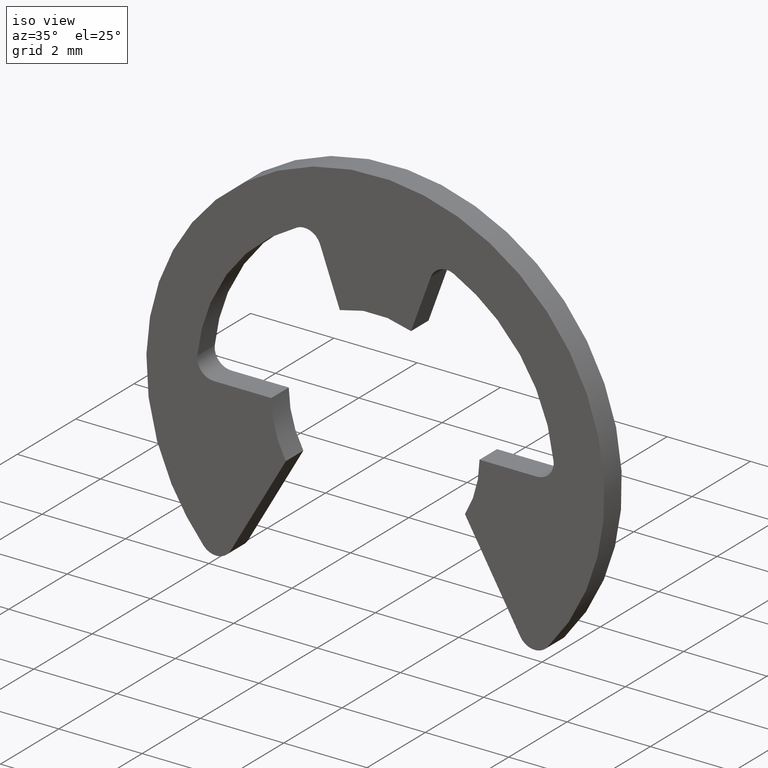
[diagram: clean part render]
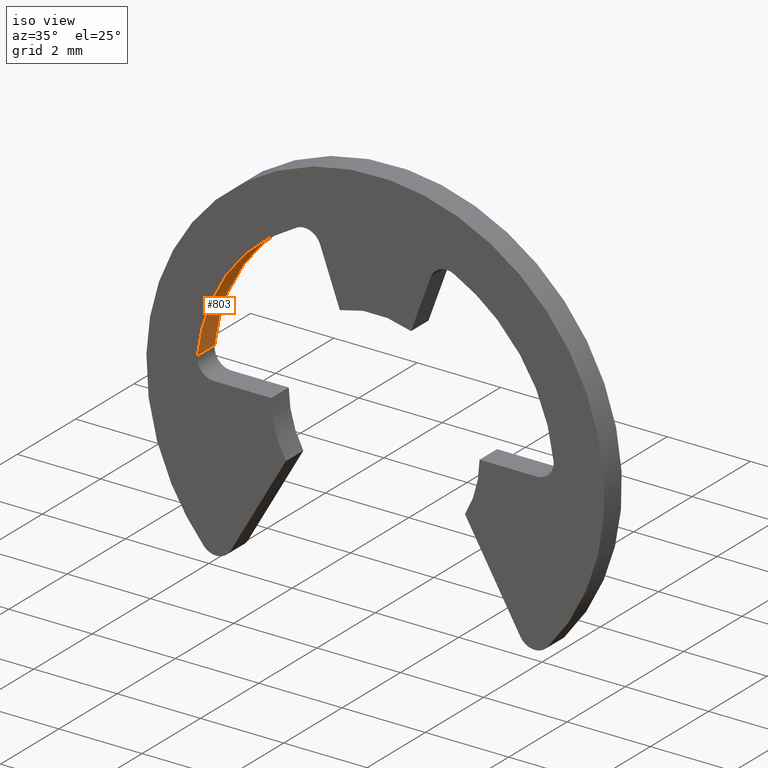
[diagram: same view with one face highlighted and labeled with its STEP entity id]
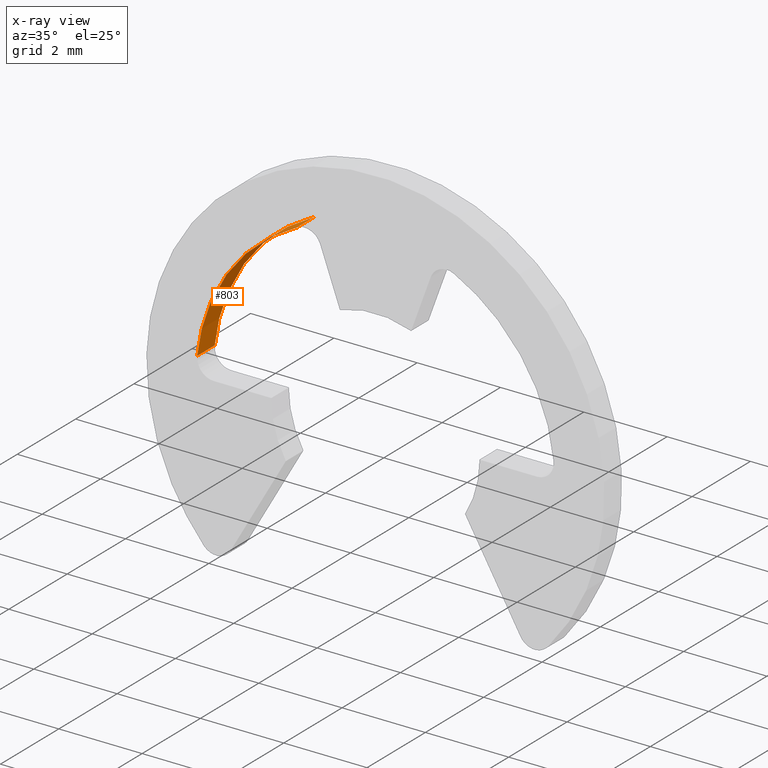
[diagram: x-ray of the same camera — body ghosted, the highlighted face saturated]
A machine part, iso view. The second image highlights one B-rep face of the part: STEP entity #803.
The next image is the same camera in x-ray: the body ghosted, the highlighted face saturated — about 0% of this face is hidden behind the body in this view.
In plain terms, the highlighted face is a freeform B-spline surface patch.
Its self-contained STEP definition (entity closure, byte-faithful):
#116=CARTESIAN_POINT('',(-4.277323619757000,0.0,0.441027049779827));
#117=VERTEX_POINT('',#116);
#133=CARTESIAN_POINT('',(-1.877360747905205,0.0,3.868528999791110));
#134=VERTEX_POINT('',#133);
#135=CARTESIAN_POINT('',(-1.877360747905204,0.0,3.868528999791111));
#136=CARTESIAN_POINT('',(-4.031718396501105,0.0,2.823039490305286));
#137=CARTESIAN_POINT('',(-4.277323619757000,0.0,0.441027049779827));
#145=(BOUNDED_CURVE()B_SPLINE_CURVE(2,(#135,#136,#137),.UNSPECIFIED.,.F.,.U.)CURVE()GEOMETRIC_REPRESENTATION_ITEM()QUASI_UNIFORM_CURVE()RATIONAL_B_SPLINE_CURVE((1.0,0.873660681245324,1.0))REPRESENTATION_ITEM(''));
#146=EDGE_CURVE('',#134,#117,#145,.T.);
#440=CARTESIAN_POINT('',(-1.877360747905205,0.600000000000045,3.868528999791110));
#441=VERTEX_POINT('',#440);
#457=CARTESIAN_POINT('',(-4.277323619757000,0.600000000000045,0.441027049779827));
#458=VERTEX_POINT('',#457);
#459=CARTESIAN_POINT('',(-1.877360747905204,0.600000000000045,3.868528999791111));
#460=CARTESIAN_POINT('',(-4.031718396501105,0.600000000000045,2.823039490305286));
#461=CARTESIAN_POINT('',(-4.277323619757000,0.600000000000045,0.441027049779827));
#469=(BOUNDED_CURVE()B_SPLINE_CURVE(2,(#459,#460,#461),.UNSPECIFIED.,.F.,.U.)CURVE()GEOMETRIC_REPRESENTATION_ITEM()QUASI_UNIFORM_CURVE()RATIONAL_B_SPLINE_CURVE((1.0,0.873660681245324,1.0))REPRESENTATION_ITEM(''));
#470=EDGE_CURVE('',#441,#458,#469,.T.);
#769=CARTESIAN_POINT('',(-1.877360747905205,0.600000000000045,3.868528999791110));
#770=CARTESIAN_POINT('',(-1.877360747905205,0.0,3.868528999791110));
#771=QUASI_UNIFORM_CURVE('',1,(#769,#770),.UNSPECIFIED.,.F.,.U.);
#772=EDGE_CURVE('',#441,#134,#771,.T.);
#779=CARTESIAN_POINT('',(-4.287402374216274,0.615000000000046,0.328908621906827));
#780=CARTESIAN_POINT('',(-4.287402374216274,-0.015375000000001,0.328908621906827));
#781=CARTESIAN_POINT('',(-4.087797036425993,0.615000000000046,2.930811831944035));
#782=CARTESIAN_POINT('',(-4.087797036425993,-0.015375000000001,2.930811831944035));
#783=CARTESIAN_POINT('',(-1.687628153387087,0.615000000000046,3.954985615131271));
#784=CARTESIAN_POINT('',(-1.687628153387087,-0.015375000000001,3.954985615131271));
#792=(BOUNDED_SURFACE()B_SPLINE_SURFACE(1,2,((#779,#781,#783),(#780,#782,#784)),.UNSPECIFIED.,.F.,.F.,.U.)B_SPLINE_SURFACE_WITH_KNOTS((2,2),(3,3),(0.0,1.0),(0.0,4.810800372258917),.UNSPECIFIED.)GEOMETRIC_REPRESENTATION_ITEM()RATIONAL_B_SPLINE_SURFACE(((1.0,0.853857561896528,0.997585319714657),(1.0,0.853857561896528,0.997585319714657)))REPRESENTATION_ITEM('')SURFACE());
#793=ORIENTED_EDGE('',*,*,#146,.T.);
#794=CARTESIAN_POINT('',(-4.277323619757000,0.600000000000045,0.441027049779827));
#795=CARTESIAN_POINT('',(-4.277323619757000,0.0,0.441027049779827));
#796=QUASI_UNIFORM_CURVE('',1,(#794,#795),.UNSPECIFIED.,.F.,.U.);
#797=EDGE_CURVE('',#458,#117,#796,.T.);
#798=ORIENTED_EDGE('',*,*,#797,.F.);
#799=ORIENTED_EDGE('',*,*,#470,.F.);
#800=ORIENTED_EDGE('',*,*,#772,.T.);
#801=EDGE_LOOP('',(#793,#798,#799,#800));
#802=FACE_OUTER_BOUND('',#801,.T.);
#803=ADVANCED_FACE('',(#802),#792,.F.);